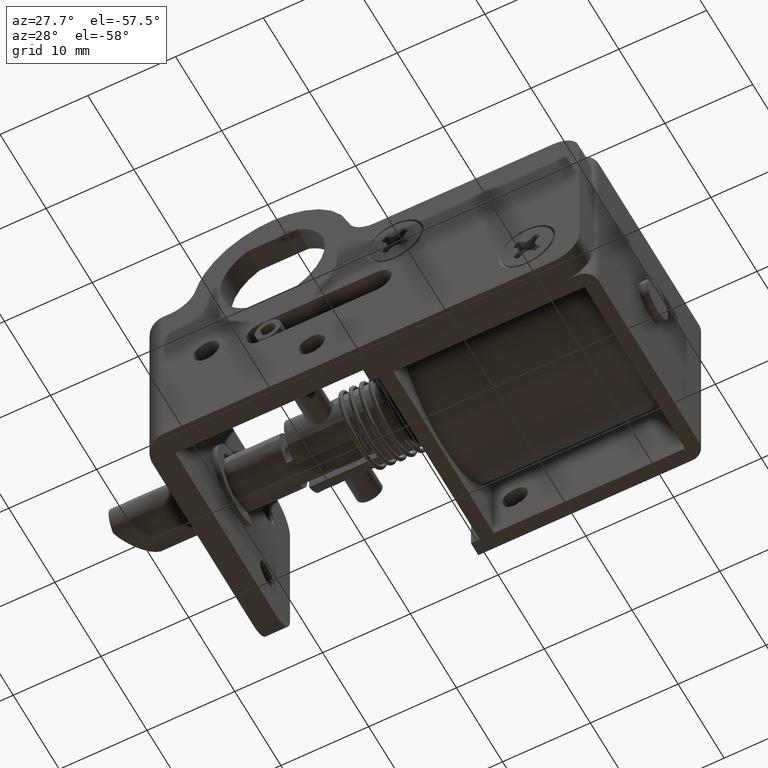
[diagram: clean part render]
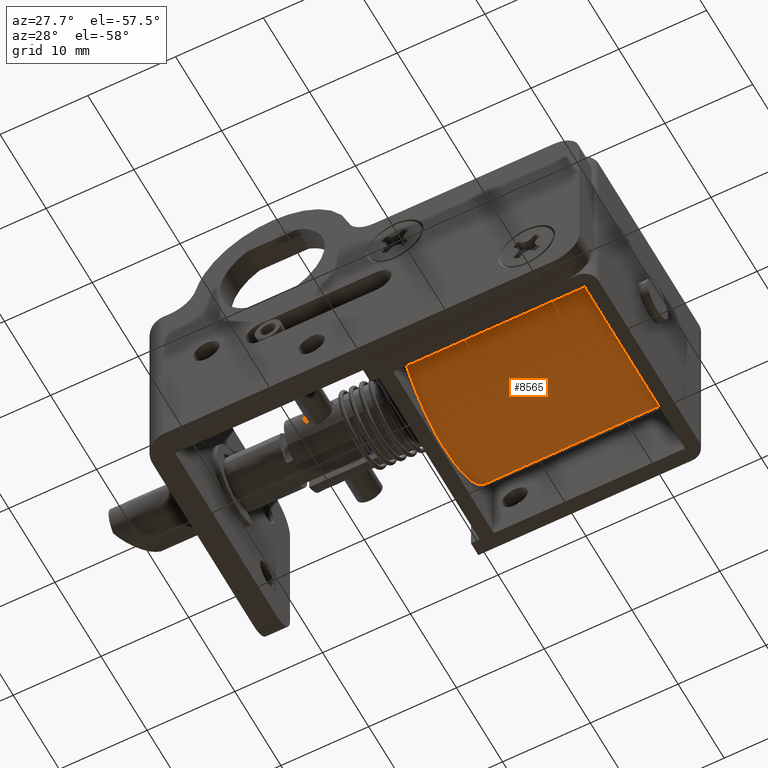
[diagram: same view with one face highlighted and labeled with its STEP entity id]
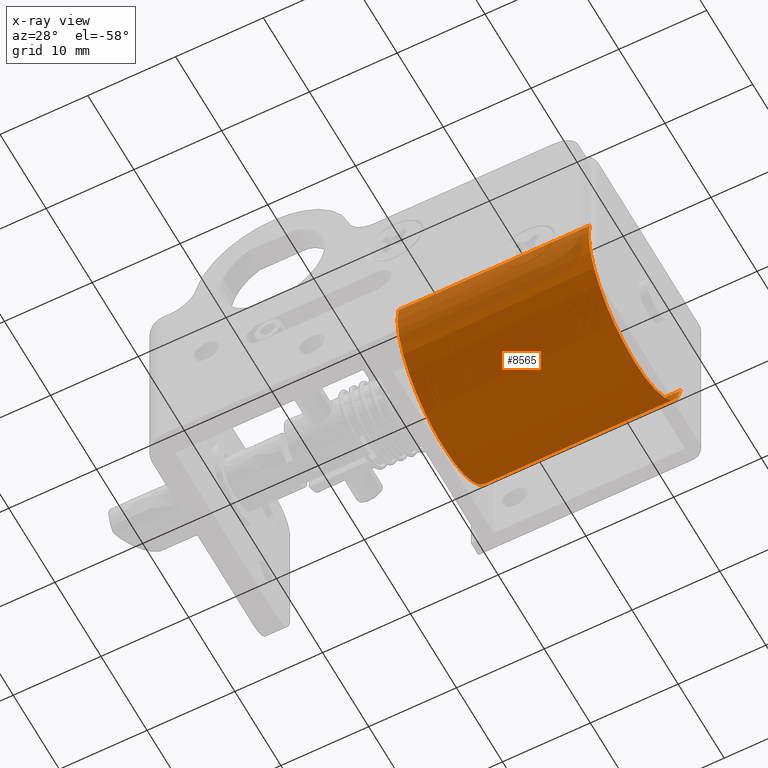
[diagram: x-ray of the same camera — body ghosted, the highlighted face saturated]
A machine part, auxiliary view. The second image highlights one B-rep face of the part: STEP entity #8565.
The next image is the same camera in x-ray: the body ghosted, the highlighted face saturated — about 17% of this face is hidden behind the body in this view.
In plain terms, the highlighted face is a freeform B-spline surface patch.
Its self-contained STEP definition (entity closure, byte-faithful):
#8463=CARTESIAN_POINT('',(11.055005899999774,5.329798650376191,-8.868529712191846));
#8464=CARTESIAN_POINT('',(11.055005899999777,5.268796886480694,-9.148148677255676));
#8465=CARTESIAN_POINT('',(11.055005899999770,5.223887021956879,-9.430798787622155));
#8466=CARTESIAN_POINT('',(11.055005899999772,3.654685809579033,-19.306911765665280));
#8467=CARTESIAN_POINT('',(11.055005899999770,13.530798787622160,-20.876112978043128));
#8468=CARTESIAN_POINT('',(11.055005899999772,23.406911765665289,-22.445314190420966));
#8469=CARTESIAN_POINT('',(11.055005899999770,24.976112978043130,-12.569201212377850));
#8470=CARTESIAN_POINT('',(33.958635102500018,5.329798650376191,-8.868529712191846));
#8471=CARTESIAN_POINT('',(33.958635102500004,5.268796886480694,-9.148148677255676));
#8472=CARTESIAN_POINT('',(33.958635102500011,5.223887021956879,-9.430798787622155));
#8473=CARTESIAN_POINT('',(33.958635102500011,3.654685809579033,-19.306911765665280));
#8474=CARTESIAN_POINT('',(33.958635102500011,13.530798787622160,-20.876112978043128));
#8475=CARTESIAN_POINT('',(33.958635102500011,23.406911765665289,-22.445314190420966));
#8476=CARTESIAN_POINT('',(33.958635102500011,24.976112978043130,-12.569201212377850));
#8484=(BOUNDED_SURFACE()B_SPLINE_SURFACE(2,1,((#8463,#8470),(#8464,#8471),(#8465,#8472),(#8466,#8473),(#8467,#8474),(#8468,#8475),(#8469,#8476)),.UNSPECIFIED.,.F.,.F.,.U.)B_SPLINE_SURFACE_WITH_KNOTS((3,2,2,3),(2,2),(0.0,0.662741699796953,17.231284194720750,33.799826689644547),(0.0,22.903629202500252),.UNSPECIFIED.)GEOMETRIC_REPRESENTATION_ITEM()RATIONAL_B_SPLINE_SURFACE(((0.977505800795127,0.977505800795127),(0.988284271247462,0.988284271247462),(1.0,1.0),(0.707106781186548,0.707106781186548),(1.0,1.0),(0.707106781186548,0.707106781186548),(1.0,1.0)))REPRESENTATION_ITEM('')SURFACE());
#8485=CARTESIAN_POINT('',(33.400010000000002,15.100000000000000,-21.0));
#8486=VERTEX_POINT('',#8485);
#8487=CARTESIAN_POINT('',(33.400010000000073,5.329795957006262,-8.868542058095198));
#8488=VERTEX_POINT('',#8487);
#8489=CARTESIAN_POINT('',(33.400010000000002,15.100000000000000,-21.0));
#8490=CARTESIAN_POINT('',(33.400010000000002,5.100000000000001,-21.000000000000004));
#8491=CARTESIAN_POINT('',(33.400010000000002,5.100000000000001,-11.0));
#8492=CARTESIAN_POINT('',(33.400009999999995,5.100000000000001,-9.921883690592956));
#8493=CARTESIAN_POINT('',(33.400010000000066,5.329795957006262,-8.868542058095196));
#8501=(BOUNDED_CURVE()B_SPLINE_CURVE(2,(#8489,#8490,#8491,#8492,#8493),.UNSPECIFIED.,.F.,.U.)B_SPLINE_CURVE_WITH_KNOTS((3,2,3),(0.500000000000000,0.750000000000000,0.786487733500360),.UNSPECIFIED.)CURVE()GEOMETRIC_REPRESENTATION_ITEM()RATIONAL_B_SPLINE_CURVE((1.0,0.707106781186548,1.0,0.957251961151488,0.926982154696317))REPRESENTATION_ITEM(''));
#8502=EDGE_CURVE('',#8486,#8488,#8501,.T.);
#8503=ORIENTED_EDGE('',*,*,#8502,.T.);
#8504=CARTESIAN_POINT('',(11.600005999999780,5.329795940975319,-8.868542131578481));
#8505=VERTEX_POINT('',#8504);
#8506=CARTESIAN_POINT('',(11.600005999999780,5.329795940975319,-8.868542131578481));
#8507=CARTESIAN_POINT('',(33.400010000000073,5.329795957006262,-8.868542058095198));
#8508=QUASI_UNIFORM_CURVE('',1,(#8506,#8507),.UNSPECIFIED.,.F.,.U.);
#8509=EDGE_CURVE('',#8505,#8488,#8508,.T.);
#8510=ORIENTED_EDGE('',*,*,#8509,.F.);
#8511=CARTESIAN_POINT('',(11.600005999999780,15.100000000000000,-21.0));
#8512=VERTEX_POINT('',#8511);
#8513=CARTESIAN_POINT('',(11.600005999999778,5.329795940975320,-8.868542131578481));
#8514=CARTESIAN_POINT('',(11.600005999999778,5.100000000000001,-9.921883728635860));
#8515=CARTESIAN_POINT('',(11.600005999999780,5.100000000000001,-11.0));
#8516=CARTESIAN_POINT('',(11.600005999999780,5.100000000000001,-21.000000000000004));
#8517=CARTESIAN_POINT('',(11.600005999999780,15.100000000000000,-21.0));
#8525=(BOUNDED_CURVE()B_SPLINE_CURVE(2,(#8513,#8514,#8515,#8516,#8517),.UNSPECIFIED.,.F.,.U.)B_SPLINE_CURVE_WITH_KNOTS((3,2,3),(0.713512267732123,0.750000000000000,1.0),.UNSPECIFIED.)CURVE()GEOMETRIC_REPRESENTATION_ITEM()RATIONAL_B_SPLINE_CURVE((0.926982156741225,0.957251962595432,1.0,0.707106781186548,1.0))REPRESENTATION_ITEM(''));
#8526=EDGE_CURVE('',#8505,#8512,#8525,.T.);
#8527=ORIENTED_EDGE('',*,*,#8526,.T.);
#8528=CARTESIAN_POINT('',(11.600005999999780,24.976114943721289,-12.569188840850000));
#8529=VERTEX_POINT('',#8528);
#8530=CARTESIAN_POINT('',(11.600005999999780,15.100000000000000,-21.0));
#8531=CARTESIAN_POINT('',(11.600005999999780,23.636566460784287,-20.999999999999996));
#8532=CARTESIAN_POINT('',(11.600005999999780,24.976114943721289,-12.569188840849993));
#8540=(BOUNDED_CURVE()B_SPLINE_CURVE(2,(#8530,#8531,#8532),.UNSPECIFIED.,.F.,.U.)B_SPLINE_CURVE_WITH_KNOTS((3,3),(0.0,0.222971378354709),.UNSPECIFIED.)CURVE()GEOMETRIC_REPRESENTATION_ITEM()RATIONAL_B_SPLINE_CURVE((1.0,0.738772781161669,0.943515106708536))REPRESENTATION_ITEM(''));
#8541=EDGE_CURVE('',#8512,#8529,#8540,.T.);
#8542=ORIENTED_EDGE('',*,*,#8541,.T.);
#8543=CARTESIAN_POINT('',(33.400010000000051,24.976114367089259,-12.569192470060550));
#8544=VERTEX_POINT('',#8543);
#8545=CARTESIAN_POINT('',(11.600005999999780,24.976114943721289,-12.569188840850000));
#8546=CARTESIAN_POINT('',(33.400010000000051,24.976114367089259,-12.569192470060550));
#8547=QUASI_UNIFORM_CURVE('',1,(#8545,#8546),.UNSPECIFIED.,.F.,.U.);
#8548=EDGE_CURVE('',#8529,#8544,#8547,.T.);
#8549=ORIENTED_EDGE('',*,*,#8548,.T.);
#8550=CARTESIAN_POINT('',(33.400010000000044,24.976114367089266,-12.569192470060557));
#8551=CARTESIAN_POINT('',(33.400010000000009,23.636563284473493,-20.999999999999993));
#8552=CARTESIAN_POINT('',(33.400010000000002,15.100000000000000,-21.0));
#8560=(BOUNDED_CURVE()B_SPLINE_CURVE(2,(#8550,#8551,#8552),.UNSPECIFIED.,.F.,.U.)B_SPLINE_CURVE_WITH_KNOTS((3,3),(0.277028682936730,0.500000000000000),.UNSPECIFIED.)CURVE()GEOMETRIC_REPRESENTATION_ITEM()RATIONAL_B_SPLINE_CURVE((0.943514994147473,0.738772852969055,1.0))REPRESENTATION_ITEM(''));
#8561=EDGE_CURVE('',#8544,#8486,#8560,.T.);
#8562=ORIENTED_EDGE('',*,*,#8561,.T.);
#8563=EDGE_LOOP('',(#8503,#8510,#8527,#8542,#8549,#8562));
#8564=FACE_OUTER_BOUND('',#8563,.T.);
#8565=ADVANCED_FACE('',(#8564),#8484,.T.);